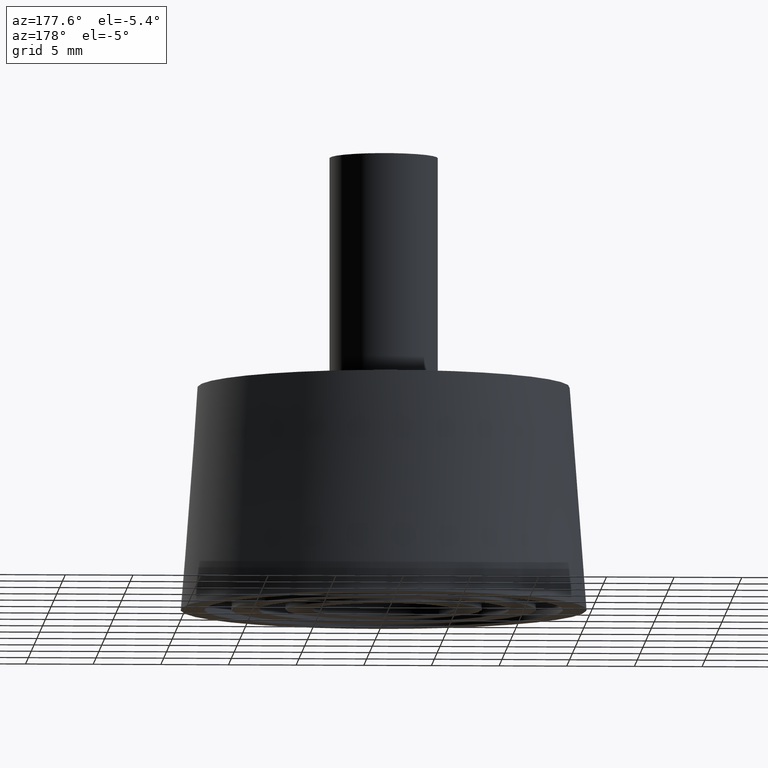
[diagram: clean part render]
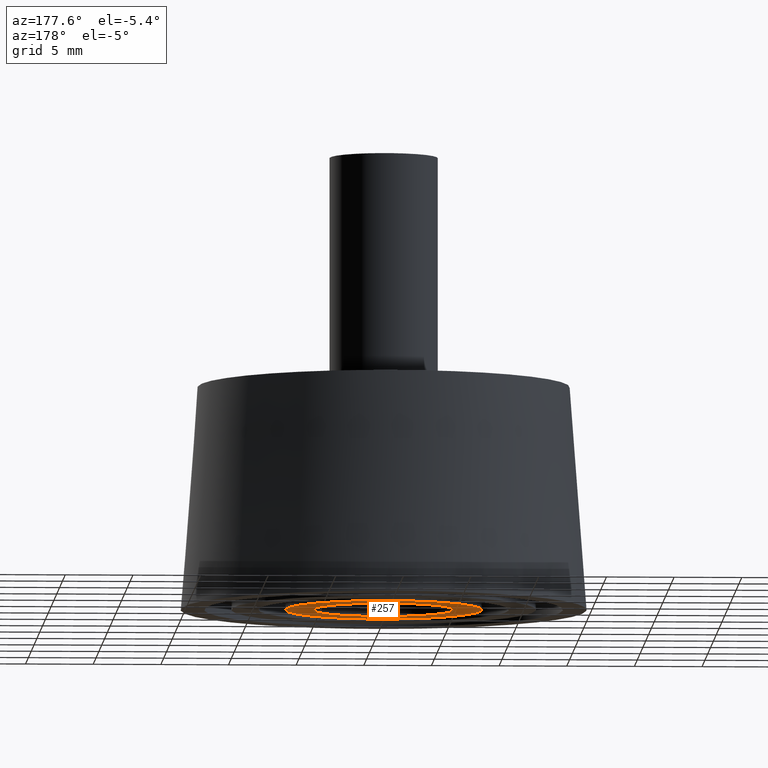
[diagram: same view with one face highlighted and labeled with its STEP entity id]
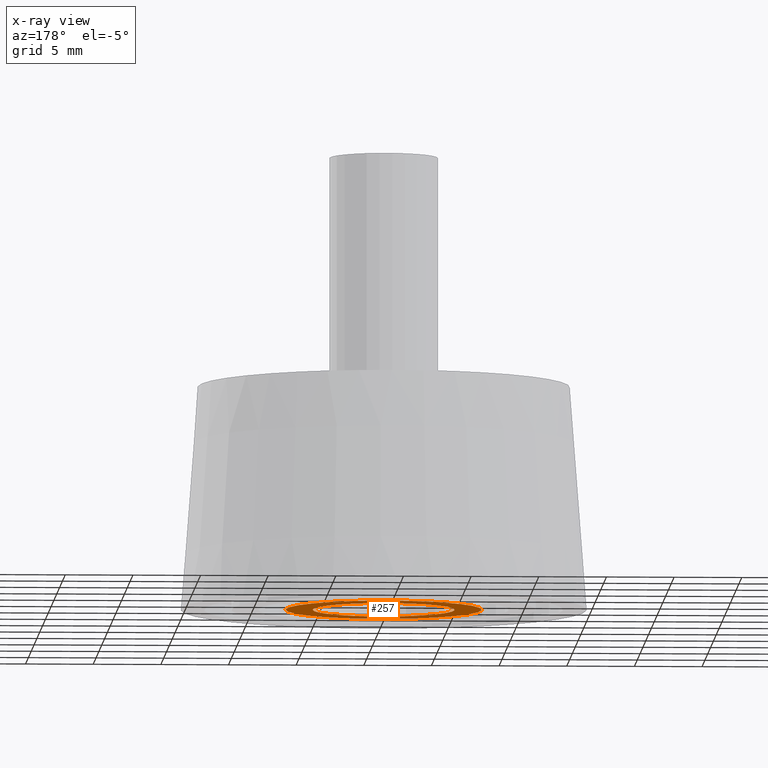
[diagram: x-ray of the same camera — body ghosted, the highlighted face saturated]
A machine part, auxiliary view. The second image highlights one B-rep face of the part: STEP entity #257.
The next image is the same camera in x-ray: the body ghosted, the highlighted face saturated — about 0% of this face is hidden behind the body in this view.
In plain terms, the highlighted planar face has unit normal (0, 0, 1).
Its self-contained STEP definition (entity closure, byte-faithful):
#27=PLANE('',#304);
#47=FACE_BOUND('',#113,.T.);
#70=FACE_OUTER_BOUND('',#112,.T.);
#112=EDGE_LOOP('',(#222));
#113=EDGE_LOOP('',(#223));
#123=CIRCLE('',#274,7.25);
#127=CIRCLE('',#281,5.25);
#145=VERTEX_POINT('',#419);
#149=VERTEX_POINT('',#430);
#167=EDGE_CURVE('',#145,#145,#123,.T.);
#171=EDGE_CURVE('',#149,#149,#127,.T.);
#222=ORIENTED_EDGE('',*,*,#167,.T.);
#223=ORIENTED_EDGE('',*,*,#171,.T.);
#257=ADVANCED_FACE('',(#70,#47),#27,.F.);
#274=AXIS2_PLACEMENT_3D('',#420,#334,#335);
#281=AXIS2_PLACEMENT_3D('',#431,#348,#349);
#304=AXIS2_PLACEMENT_3D('',#464,#394,#395);
#334=DIRECTION('center_axis',(0.,0.,-1.));
#335=DIRECTION('ref_axis',(1.,0.,0.));
#348=DIRECTION('center_axis',(0.,0.,1.));
#349=DIRECTION('ref_axis',(1.,0.,0.));
#394=DIRECTION('center_axis',(0.,0.,1.));
#395=DIRECTION('ref_axis',(1.,0.,0.));
#419=CARTESIAN_POINT('',(-7.25,8.87868929381831E-16,0.));
#420=CARTESIAN_POINT('Origin',(0.,0.,0.));
#430=CARTESIAN_POINT('',(-5.25,6.42939569552361E-16,0.));
#431=CARTESIAN_POINT('Origin',(0.,0.,0.));
#464=CARTESIAN_POINT('Origin',(0.,0.,0.));